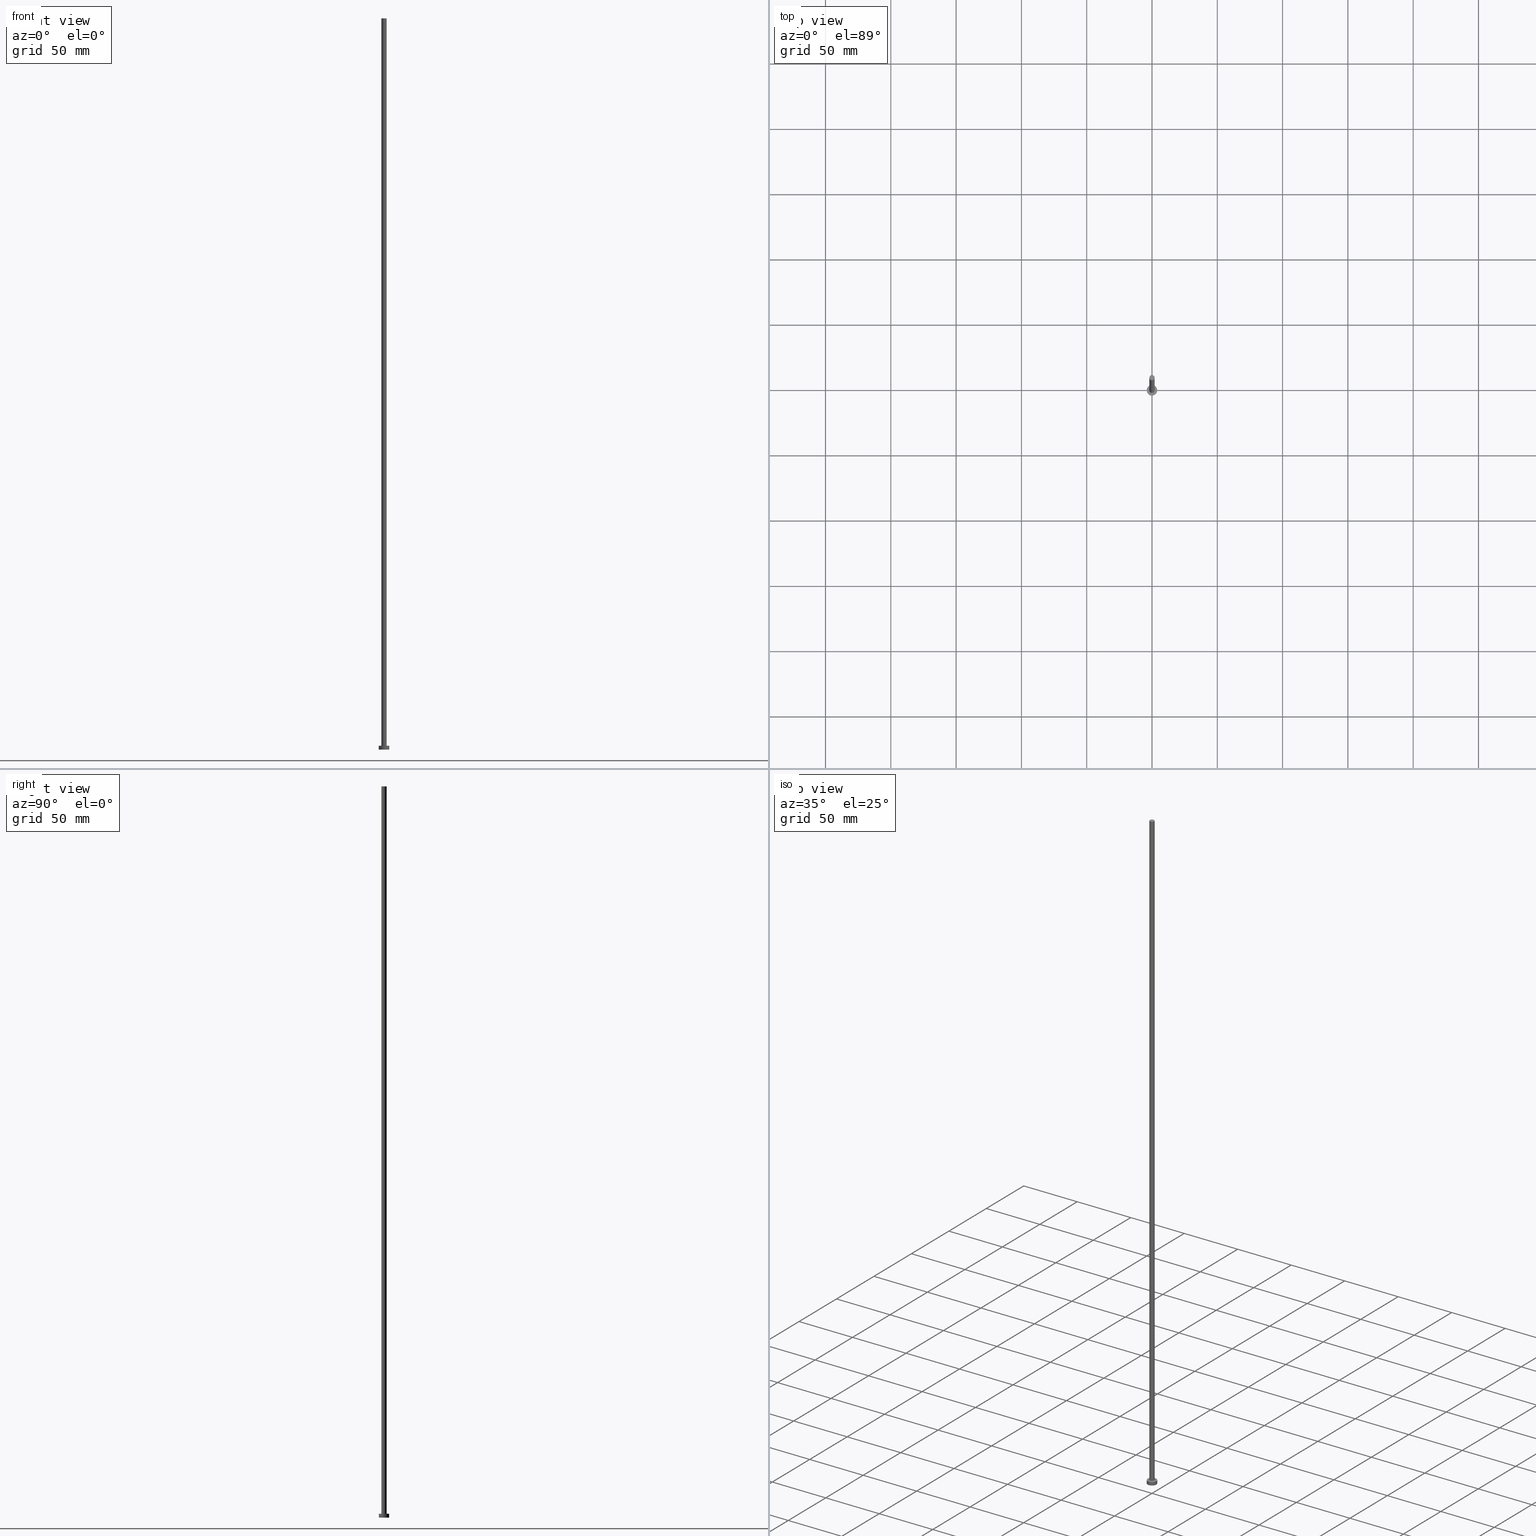
[diagram: canonical four-view strip — front | top / right | iso, engineering-drawing reading convention]
A machine part, canonical four-view strip (front | top / right | iso — engineering-drawing reading convention). The complete STEP part file that produces these views, byte-faithful:
ISO-10303-21;
HEADER;
FILE_DESCRIPTION (( 'STEP AP203' ),
    '1' );
FILE_NAME ('e1a6.STEP',
    '2023-05-05T07:33:14',
    ( '' ),
    ( '' ),
    'SwSTEP 2.0',
    'SolidWorks 2019',
    '' );
FILE_SCHEMA (( 'CONFIG_CONTROL_DESIGN' ));
ENDSEC;

DATA;
#1 = CLOSED_SHELL ( 'NONE', ( #240, #77, #68, #210, #229, #21, #202 ) ) ;
#2 = DIRECTION ( 'NONE',  ( 1.000000000000000000, 0.000000000000000000, 0.000000000000000000 ) ) ;
#3 = DIRECTION ( 'NONE',  ( 0.000000000000000000, 0.000000000000000000, 1.000000000000000000 ) ) ;
#4 = CARTESIAN_POINT ( 'NONE',  ( 0.000000000000000000, 0.000000000000000000, 560.0000000000000000 ) ) ;
#5 = CALENDAR_DATE ( 2023, 5, 5 ) ;
#6 = DATE_TIME_ROLE ( 'classification_date' ) ;
#7 = ORIENTED_EDGE ( 'NONE', *, *, #28, .F. ) ;
#8 = ORIENTED_EDGE ( 'NONE', *, *, #219, .F. ) ;
#9 = ORIENTED_EDGE ( 'NONE', *, *, #92, .T. ) ;
#10 = AXIS2_PLACEMENT_3D ( 'NONE', #125, #104, #74 ) ;
#11 = EDGE_CURVE ( 'NONE', #206, #204, #129, .T. ) ;
#12 = CIRCLE ( 'NONE', #161, 2.000000000000000000 ) ;
#13 = ORIENTED_EDGE ( 'NONE', *, *, #28, .T. ) ;
#14 = DIRECTION ( 'NONE',  ( 1.000000000000000000, 0.000000000000000000, 0.000000000000000000 ) ) ;
#15 = CARTESIAN_POINT ( 'NONE',  ( 0.000000000000000000, 0.000000000000000000, 3.000000000000000000 ) ) ;
#16 = CARTESIAN_POINT ( 'NONE',  ( 0.000000000000000000, 0.000000000000000000, 3.000000000000000000 ) ) ;
#17 = DIRECTION ( 'NONE',  ( -1.000000000000000000, 0.000000000000000000, 0.000000000000000000 ) ) ;
#18 = CARTESIAN_POINT ( 'NONE',  ( 0.000000000000000000, 0.000000000000000000, 0.000000000000000000 ) ) ;
#19 = AXIS2_PLACEMENT_3D ( 'NONE', #63, #186, #150 ) ;
#20 = DIRECTION ( 'NONE',  ( 1.000000000000000000, 0.000000000000000000, -0.000000000000000000 ) ) ;
#21 = ADVANCED_FACE ( 'NONE', ( #139 ), #31, .T. ) ;
#22 = DATE_AND_TIME ( #200, #84 ) ;
#23 = DIRECTION ( 'NONE',  ( -0.000000000000000000, -0.000000000000000000, -1.000000000000000000 ) ) ;
#24 = AXIS2_PLACEMENT_3D ( 'NONE', #80, #235, #122 ) ;
#25 = AXIS2_PLACEMENT_3D ( 'NONE', #194, #32, #54 ) ;
#26 = COORDINATED_UNIVERSAL_TIME_OFFSET ( 1, 0, .AHEAD. ) ;
#27 = PRODUCT_RELATED_PRODUCT_CATEGORY ( 'detail', '', ( #253 ) ) ;
#28 = EDGE_CURVE ( 'NONE', #118, #30, #111, .T. ) ;
#29 = AXIS2_PLACEMENT_3D ( 'NONE', #197, #102, #2 ) ;
#30 = VERTEX_POINT ( 'NONE', #56 ) ;
#31 = CYLINDRICAL_SURFACE ( 'NONE', #10, 2.000000000000000000 ) ;
#32 = DIRECTION ( 'NONE',  ( 0.000000000000000000, 0.000000000000000000, 1.000000000000000000 ) ) ;
#33 = FACE_BOUND ( 'NONE', #191, .T. ) ;
#34 = AXIS2_PLACEMENT_3D ( 'NONE', #237, #23, #148 ) ;
#35 = CARTESIAN_POINT ( 'NONE',  ( 4.000000000000000000, 4.898587196589412829E-16, 0.000000000000000000 ) ) ;
#36 = CC_DESIGN_PERSON_AND_ORGANIZATION_ASSIGNMENT ( #173, #203, ( #89 ) ) ;
#37 = CARTESIAN_POINT ( 'NONE',  ( 4.000000000000000000, 4.898587196589412829E-16, 3.000000000000000000 ) ) ;
#38 = COORDINATED_UNIVERSAL_TIME_OFFSET ( 1, 0, .AHEAD. ) ;
#39 = CC_DESIGN_PERSON_AND_ORGANIZATION_ASSIGNMENT ( #136, #44, ( #185 ) ) ;
#40 = LINE ( 'NONE', #184, #49 ) ;
#41 = DIRECTION ( 'NONE',  ( 1.000000000000000000, 0.000000000000000000, 0.000000000000000000 ) ) ;
#42 = PERSON_AND_ORGANIZATION_ROLE ( 'creator' ) ;
#43 = PERSON_AND_ORGANIZATION ( #86, #170 ) ;
#44 = PERSON_AND_ORGANIZATION_ROLE ( 'creator' ) ;
#45 = EDGE_LOOP ( 'NONE', ( #220, #175, #9, #193 ) ) ;
#46 = COORDINATED_UNIVERSAL_TIME_OFFSET ( 1, 0, .AHEAD. ) ;
#47 = LOCAL_TIME ( 9, 33, 14.00000000000000000, #132 ) ;
#48 = SECURITY_CLASSIFICATION_LEVEL ( 'unclassified' ) ;
#49 = VECTOR ( 'NONE', #66, 1000.000000000000000 ) ;
#50 = VERTEX_POINT ( 'NONE', #157 ) ;
#51 = ORIENTED_EDGE ( 'NONE', *, *, #121, .T. ) ;
#52 = APPROVAL_ROLE ( '' ) ;
#53 = ORIENTED_EDGE ( 'NONE', *, *, #11, .F. ) ;
#54 = DIRECTION ( 'NONE',  ( 1.000000000000000000, 0.000000000000000000, 0.000000000000000000 ) ) ;
#55 = VECTOR ( 'NONE', #214, 1000.000000000000000 ) ;
#56 = CARTESIAN_POINT ( 'NONE',  ( -2.000000000000000000, 0.000000000000000000, 3.000000000000000000 ) ) ;
#57 = DIRECTION ( 'NONE',  ( 1.000000000000000000, 0.000000000000000000, -0.000000000000000000 ) ) ;
#58 = DIRECTION ( 'NONE',  ( 1.000000000000000000, 0.000000000000000000, 0.000000000000000000 ) ) ;
#59 =( GEOMETRIC_REPRESENTATION_CONTEXT ( 3 ) GLOBAL_UNCERTAINTY_ASSIGNED_CONTEXT ( ( #227 ) ) GLOBAL_UNIT_ASSIGNED_CONTEXT ( ( #239, #127, #215 ) ) REPRESENTATION_CONTEXT ( 'NONE', 'WORKASPACE' ) );
#60 = CYLINDRICAL_SURFACE ( 'NONE', #156, 4.000000000000000000 ) ;
#61 = APPROVAL_ROLE ( '' ) ;
#62 = CIRCLE ( 'NONE', #98, 4.000000000000000000 ) ;
#63 = CARTESIAN_POINT ( 'NONE',  ( 0.000000000000000000, 0.000000000000000000, 0.000000000000000000 ) ) ;
#64 = CC_DESIGN_SECURITY_CLASSIFICATION ( #89, ( #185 ) ) ;
#65 = APPLICATION_PROTOCOL_DEFINITION ( 'international standard', 'config_control_design', 1994, #103 ) ;
#66 = DIRECTION ( 'NONE',  ( -0.000000000000000000, -0.000000000000000000, -1.000000000000000000 ) ) ;
#67 = EDGE_LOOP ( 'NONE', ( #96, #134, #114, #91 ) ) ;
#68 = ADVANCED_FACE ( 'NONE', ( #228 ), #255, .T. ) ;
#69 = ORIENTED_EDGE ( 'NONE', *, *, #100, .F. ) ;
#70 = APPROVAL_PERSON_ORGANIZATION ( #152, #115, #52 ) ;
#71 = DATE_AND_TIME ( #90, #116 ) ;
#72 = EDGE_LOOP ( 'NONE', ( #181, #53 ) ) ;
#73 = ORIENTED_EDGE ( 'NONE', *, *, #107, .T. ) ;
#74 = DIRECTION ( 'NONE',  ( -1.000000000000000000, 0.000000000000000000, 0.000000000000000000 ) ) ;
#75 = CARTESIAN_POINT ( 'NONE',  ( 0.000000000000000000, 0.000000000000000000, 560.0000000000000000 ) ) ;
#76 = CC_DESIGN_PERSON_AND_ORGANIZATION_ASSIGNMENT ( #190, #247, ( #185 ) ) ;
#77 = ADVANCED_FACE ( 'NONE', ( #231 ), #60, .T. ) ;
#78 = DIRECTION ( 'NONE',  ( 0.000000000000000000, 0.000000000000000000, 1.000000000000000000 ) ) ;
#79 = VECTOR ( 'NONE', #162, 1000.000000000000000 ) ;
#80 = CARTESIAN_POINT ( 'NONE',  ( 0.000000000000000000, 0.000000000000000000, 3.000000000000000000 ) ) ;
#81 = LOCAL_TIME ( 9, 33, 14.00000000000000000, #26 ) ;
#82 = PERSON_AND_ORGANIZATION_ROLE ( 'design_owner' ) ;
#83 = MECHANICAL_CONTEXT ( 'NONE', #103, 'mechanical' ) ;
#84 = LOCAL_TIME ( 9, 33, 14.00000000000000000, #217 ) ;
#85 = APPROVAL_ROLE ( '' ) ;
#86 = PERSON ( 'NEUR�EN�', 'NEUR�EN�', 'NEUR�EN�', ('NEUR�EN�'), ('NEUR�EN�'), ('NEUR�EN�') ) ;
#87 = CC_DESIGN_DATE_AND_TIME_ASSIGNMENT ( #109, #169, ( #146 ) ) ;
#88 = APPLICATION_PROTOCOL_DEFINITION ( 'international standard', 'config_control_design', 1994, #117 ) ;
#89 = SECURITY_CLASSIFICATION ( '', '', #48 ) ;
#90 = CALENDAR_DATE ( 2023, 5, 5 ) ;
#91 = ORIENTED_EDGE ( 'NONE', *, *, #92, .F. ) ;
#92 = EDGE_CURVE ( 'NONE', #50, #204, #138, .T. ) ;
#93 = DATE_AND_TIME ( #143, #252 ) ;
#94 = ORIENTED_EDGE ( 'NONE', *, *, #135, .F. ) ;
#95 = EDGE_LOOP ( 'NONE', ( #246, #187 ) ) ;
#96 = ORIENTED_EDGE ( 'NONE', *, *, #166, .F. ) ;
#97 = DIRECTION ( 'NONE',  ( 1.000000000000000000, 0.000000000000000000, 0.000000000000000000 ) ) ;
#98 = AXIS2_PLACEMENT_3D ( 'NONE', #119, #195, #14 ) ;
#99 = CARTESIAN_POINT ( 'NONE',  ( 0.000000000000000000, 0.000000000000000000, 3.000000000000000000 ) ) ;
#100 = EDGE_CURVE ( 'NONE', #113, #244, #149, .T. ) ;
#101 = DIRECTION ( 'NONE',  ( 0.000000000000000000, 0.000000000000000000, 1.000000000000000000 ) ) ;
#102 = DIRECTION ( 'NONE',  ( 0.000000000000000000, 0.000000000000000000, 1.000000000000000000 ) ) ;
#103 = APPLICATION_CONTEXT ( 'configuration controlled 3d designs of mechanical parts and assemblies' ) ;
#104 = DIRECTION ( 'NONE',  ( -0.000000000000000000, -0.000000000000000000, -1.000000000000000000 ) ) ;
#105 = AXIS2_PLACEMENT_3D ( 'NONE', #15, #78, #179 ) ;
#106 = CARTESIAN_POINT ( 'NONE',  ( 0.000000000000000000, 0.000000000000000000, 0.000000000000000000 ) ) ;
#107 = EDGE_CURVE ( 'NONE', #50, #248, #144, .T. ) ;
#108 = APPROVAL ( #236, 'NEUR�EN�' ) ;
#109 = DATE_AND_TIME ( #201, #47 ) ;
#110 = SHAPE_DEFINITION_REPRESENTATION ( #120, #223 ) ;
#111 = CIRCLE ( 'NONE', #160, 2.000000000000000000 ) ;
#112 = VECTOR ( 'NONE', #254, 1000.000000000000000 ) ;
#113 = VERTEX_POINT ( 'NONE', #142 ) ;
#114 = ORIENTED_EDGE ( 'NONE', *, *, #11, .T. ) ;
#115 = APPROVAL ( #171, 'NEUR�EN�' ) ;
#116 = LOCAL_TIME ( 9, 33, 14.00000000000000000, #46 ) ;
#117 = APPLICATION_CONTEXT ( 'configuration controlled 3d designs of mechanical parts and assemblies' ) ;
#118 = VERTEX_POINT ( 'NONE', #233 ) ;
#119 = CARTESIAN_POINT ( 'NONE',  ( 0.000000000000000000, 0.000000000000000000, 0.000000000000000000 ) ) ;
#120 = PRODUCT_DEFINITION_SHAPE ( 'NONE', 'NONE',  #146 ) ;
#121 = EDGE_CURVE ( 'NONE', #30, #118, #178, .T. ) ;
#122 = DIRECTION ( 'NONE',  ( 1.000000000000000000, 0.000000000000000000, 0.000000000000000000 ) ) ;
#123 = CC_DESIGN_PERSON_AND_ORGANIZATION_ASSIGNMENT ( #43, #82, ( #253 ) ) ;
#124 = FACE_OUTER_BOUND ( 'NONE', #188, .T. ) ;
#125 = CARTESIAN_POINT ( 'NONE',  ( 0.000000000000000000, 0.000000000000000000, 560.0000000000000000 ) ) ;
#126 = LINE ( 'NONE', #37, #112 ) ;
#127 =( NAMED_UNIT ( * ) PLANE_ANGLE_UNIT ( ) SI_UNIT ( $, .RADIAN. ) );
#128 = EDGE_CURVE ( 'NONE', #204, #206, #62, .T. ) ;
#129 = CIRCLE ( 'NONE', #232, 4.000000000000000000 ) ;
#130 = DIRECTION ( 'NONE',  ( 1.000000000000000000, 0.000000000000000000, 0.000000000000000000 ) ) ;
#131 = CC_DESIGN_APPROVAL ( #108, ( #185 ) ) ;
#132 = COORDINATED_UNIVERSAL_TIME_OFFSET ( 1, 0, .AHEAD. ) ;
#133 = APPROVAL_DATE_TIME ( #93, #108 ) ;
#134 = ORIENTED_EDGE ( 'NONE', *, *, #174, .T. ) ;
#135 = EDGE_CURVE ( 'NONE', #113, #118, #177, .T. ) ;
#136 = PERSON_AND_ORGANIZATION ( #86, #170 ) ;
#137 = ORIENTED_EDGE ( 'NONE', *, *, #241, .F. ) ;
#138 = LINE ( 'NONE', #180, #79 ) ;
#139 = FACE_OUTER_BOUND ( 'NONE', #172, .T. ) ;
#140 = CARTESIAN_POINT ( 'NONE',  ( -4.000000000000000000, 0.000000000000000000, 0.000000000000000000 ) ) ;
#141 = FACE_OUTER_BOUND ( 'NONE', #95, .T. ) ;
#142 = CARTESIAN_POINT ( 'NONE',  ( 2.000000000000000000, 2.449293598294706414E-16, 560.0000000000000000 ) ) ;
#143 = CALENDAR_DATE ( 2023, 5, 5 ) ;
#144 = CIRCLE ( 'NONE', #25, 4.000000000000000000 ) ;
#145 = DIRECTION ( 'NONE',  ( 0.000000000000000000, 0.000000000000000000, 1.000000000000000000 ) ) ;
#146 = PRODUCT_DEFINITION ( 'NEZN�M�', '', #185, #245 ) ;
#147 = APPROVAL_STATUS ( 'not_yet_approved' ) ;
#148 = DIRECTION ( 'NONE',  ( -1.000000000000000000, 0.000000000000000000, 0.000000000000000000 ) ) ;
#149 = CIRCLE ( 'NONE', #29, 2.000000000000000000 ) ;
#150 = DIRECTION ( 'NONE',  ( 1.000000000000000000, 0.000000000000000000, -0.000000000000000000 ) ) ;
#151 = AXIS2_PLACEMENT_3D ( 'NONE', #75, #158, #57 ) ;
#152 = PERSON_AND_ORGANIZATION ( #86, #170 ) ;
#153 = ORIENTED_EDGE ( 'NONE', *, *, #135, .T. ) ;
#154 = ORIENTED_EDGE ( 'NONE', *, *, #121, .F. ) ;
#155 = CARTESIAN_POINT ( 'NONE',  ( 0.000000000000000000, 0.000000000000000000, 3.000000000000000000 ) ) ;
#156 = AXIS2_PLACEMENT_3D ( 'NONE', #99, #225, #208 ) ;
#157 = CARTESIAN_POINT ( 'NONE',  ( -4.000000000000000000, 0.000000000000000000, 3.000000000000000000 ) ) ;
#158 = DIRECTION ( 'NONE',  ( 0.000000000000000000, 0.000000000000000000, 1.000000000000000000 ) ) ;
#159 = CARTESIAN_POINT ( 'NONE',  ( 0.000000000000000000, 0.000000000000000000, 3.000000000000000000 ) ) ;
#160 = AXIS2_PLACEMENT_3D ( 'NONE', #159, #249, #58 ) ;
#161 = AXIS2_PLACEMENT_3D ( 'NONE', #4, #145, #130 ) ;
#162 = DIRECTION ( 'NONE',  ( -0.000000000000000000, -0.000000000000000000, -1.000000000000000000 ) ) ;
#163 = CC_DESIGN_PERSON_AND_ORGANIZATION_ASSIGNMENT ( #218, #42, ( #146 ) ) ;
#164 = PERSON_AND_ORGANIZATION ( #86, #170 ) ;
#165 = FACE_OUTER_BOUND ( 'NONE', #224, .T. ) ;
#166 = EDGE_CURVE ( 'NONE', #248, #50, #238, .T. ) ;
#167 = FACE_OUTER_BOUND ( 'NONE', #72, .T. ) ;
#168 = APPROVAL_DATE_TIME ( #22, #230 ) ;
#169 = DATE_TIME_ROLE ( 'creation_date' ) ;
#170 = ORGANIZATION ( 'NEUR�EN�', 'NEUR�EN�', '' ) ;
#171 = APPROVAL_STATUS ( 'not_yet_approved' ) ;
#172 = EDGE_LOOP ( 'NONE', ( #94, #8, #222, #51 ) ) ;
#173 = PERSON_AND_ORGANIZATION ( #86, #170 ) ;
#174 = EDGE_CURVE ( 'NONE', #248, #206, #126, .T. ) ;
#175 = ORIENTED_EDGE ( 'NONE', *, *, #107, .F. ) ;
#176 = ORIENTED_EDGE ( 'NONE', *, *, #166, .T. ) ;
#177 = LINE ( 'NONE', #251, #55 ) ;
#178 = CIRCLE ( 'NONE', #24, 2.000000000000000000 ) ;
#179 = DIRECTION ( 'NONE',  ( 1.000000000000000000, 0.000000000000000000, 0.000000000000000000 ) ) ;
#180 = CARTESIAN_POINT ( 'NONE',  ( -4.000000000000000000, 0.000000000000000000, 3.000000000000000000 ) ) ;
#181 = ORIENTED_EDGE ( 'NONE', *, *, #128, .F. ) ;
#182 = PLANE ( 'NONE',  #19 ) ;
#183 = PERSON_AND_ORGANIZATION ( #86, #170 ) ;
#184 = CARTESIAN_POINT ( 'NONE',  ( -2.000000000000000000, 0.000000000000000000, 560.0000000000000000 ) ) ;
#185 = PRODUCT_DEFINITION_FORMATION_WITH_SPECIFIED_SOURCE ( 'LIBOVOLN�', '', #253, .NOT_KNOWN. ) ;
#186 = DIRECTION ( 'NONE',  ( 0.000000000000000000, 0.000000000000000000, 1.000000000000000000 ) ) ;
#187 = ORIENTED_EDGE ( 'NONE', *, *, #100, .T. ) ;
#188 = EDGE_LOOP ( 'NONE', ( #73, #176 ) ) ;
#189 = CC_DESIGN_DATE_AND_TIME_ASSIGNMENT ( #243, #6, ( #89 ) ) ;
#190 = PERSON_AND_ORGANIZATION ( #86, #170 ) ;
#191 = EDGE_LOOP ( 'NONE', ( #154, #7 ) ) ;
#192 = CC_DESIGN_APPROVAL ( #230, ( #146 ) ) ;
#193 = ORIENTED_EDGE ( 'NONE', *, *, #128, .T. ) ;
#194 = CARTESIAN_POINT ( 'NONE',  ( 0.000000000000000000, 0.000000000000000000, 3.000000000000000000 ) ) ;
#195 = DIRECTION ( 'NONE',  ( 0.000000000000000000, 0.000000000000000000, 1.000000000000000000 ) ) ;
#196 = PLANE ( 'NONE',  #242 ) ;
#197 = CARTESIAN_POINT ( 'NONE',  ( 0.000000000000000000, 0.000000000000000000, 560.0000000000000000 ) ) ;
#198 = CARTESIAN_POINT ( 'NONE',  ( 4.000000000000000000, 4.898587196589412829E-16, 3.000000000000000000 ) ) ;
#199 = CARTESIAN_POINT ( 'NONE',  ( -2.000000000000000000, 0.000000000000000000, 560.0000000000000000 ) ) ;
#200 = CALENDAR_DATE ( 2023, 5, 5 ) ;
#201 = CALENDAR_DATE ( 2023, 5, 5 ) ;
#202 = ADVANCED_FACE ( 'NONE', ( #141 ), #213, .T. ) ;
#203 = PERSON_AND_ORGANIZATION_ROLE ( 'classification_officer' ) ;
#204 = VERTEX_POINT ( 'NONE', #140 ) ;
#205 = APPROVAL_DATE_TIME ( #71, #115 ) ;
#206 = VERTEX_POINT ( 'NONE', #35 ) ;
#207 = DIRECTION ( 'NONE',  ( 0.000000000000000000, 0.000000000000000000, 1.000000000000000000 ) ) ;
#208 = DIRECTION ( 'NONE',  ( -1.000000000000000000, 0.000000000000000000, 0.000000000000000000 ) ) ;
#209 = DIRECTION ( 'NONE',  ( -0.000000000000000000, -0.000000000000000000, -1.000000000000000000 ) ) ;
#210 = ADVANCED_FACE ( 'NONE', ( #33, #124 ), #196, .T. ) ;
#211 = CC_DESIGN_APPROVAL ( #115, ( #89 ) ) ;
#212 = MANIFOLD_SOLID_BREP ( 'P�idat vysunut�m3', #1 ) ;
#213 = PLANE ( 'NONE',  #151 ) ;
#214 = DIRECTION ( 'NONE',  ( -0.000000000000000000, -0.000000000000000000, -1.000000000000000000 ) ) ;
#215 =( NAMED_UNIT ( * ) SI_UNIT ( $, .STERADIAN. ) SOLID_ANGLE_UNIT ( ) );
#216 = CYLINDRICAL_SURFACE ( 'NONE', #34, 2.000000000000000000 ) ;
#217 = COORDINATED_UNIVERSAL_TIME_OFFSET ( 1, 0, .AHEAD. ) ;
#218 = PERSON_AND_ORGANIZATION ( #86, #170 ) ;
#219 = EDGE_CURVE ( 'NONE', #244, #113, #12, .T. ) ;
#220 = ORIENTED_EDGE ( 'NONE', *, *, #174, .F. ) ;
#221 = APPROVAL_PERSON_ORGANIZATION ( #164, #108, #61 ) ;
#222 = ORIENTED_EDGE ( 'NONE', *, *, #241, .T. ) ;
#223 = ADVANCED_BREP_SHAPE_REPRESENTATION ( 'e1a6', ( #212, #234 ), #59 ) ;
#224 = EDGE_LOOP ( 'NONE', ( #69, #153, #13, #137 ) ) ;
#225 = DIRECTION ( 'NONE',  ( -0.000000000000000000, -0.000000000000000000, -1.000000000000000000 ) ) ;
#226 = APPROVAL_PERSON_ORGANIZATION ( #183, #230, #85 ) ;
#227 = UNCERTAINTY_MEASURE_WITH_UNIT (LENGTH_MEASURE( 1.000000000000000082E-05 ), #239, 'distance_accuracy_value', 'NONE');
#228 = FACE_OUTER_BOUND ( 'NONE', #45, .T. ) ;
#229 = ADVANCED_FACE ( 'NONE', ( #167 ), #182, .F. ) ;
#230 = APPROVAL ( #147, 'NEUR�EN�' ) ;
#231 = FACE_OUTER_BOUND ( 'NONE', #67, .T. ) ;
#232 = AXIS2_PLACEMENT_3D ( 'NONE', #18, #207, #97 ) ;
#233 = CARTESIAN_POINT ( 'NONE',  ( 2.000000000000000000, 2.449293598294706414E-16, 3.000000000000000000 ) ) ;
#234 = AXIS2_PLACEMENT_3D ( 'NONE', #106, #3, #41 ) ;
#235 = DIRECTION ( 'NONE',  ( 0.000000000000000000, 0.000000000000000000, 1.000000000000000000 ) ) ;
#236 = APPROVAL_STATUS ( 'not_yet_approved' ) ;
#237 = CARTESIAN_POINT ( 'NONE',  ( 0.000000000000000000, 0.000000000000000000, 560.0000000000000000 ) ) ;
#238 = CIRCLE ( 'NONE', #105, 4.000000000000000000 ) ;
#239 =( LENGTH_UNIT ( ) NAMED_UNIT ( * ) SI_UNIT ( .MILLI., .METRE. ) );
#240 = ADVANCED_FACE ( 'NONE', ( #165 ), #216, .T. ) ;
#241 = EDGE_CURVE ( 'NONE', #244, #30, #40, .T. ) ;
#242 = AXIS2_PLACEMENT_3D ( 'NONE', #16, #101, #20 ) ;
#243 = DATE_AND_TIME ( #5, #81 ) ;
#244 = VERTEX_POINT ( 'NONE', #199 ) ;
#245 = DESIGN_CONTEXT ( 'detailed design', #117, 'design' ) ;
#246 = ORIENTED_EDGE ( 'NONE', *, *, #219, .T. ) ;
#247 = PERSON_AND_ORGANIZATION_ROLE ( 'design_supplier' ) ;
#248 = VERTEX_POINT ( 'NONE', #198 ) ;
#249 = DIRECTION ( 'NONE',  ( 0.000000000000000000, 0.000000000000000000, 1.000000000000000000 ) ) ;
#250 = AXIS2_PLACEMENT_3D ( 'NONE', #155, #209, #17 ) ;
#251 = CARTESIAN_POINT ( 'NONE',  ( 2.000000000000000000, 2.449293598294706414E-16, 560.0000000000000000 ) ) ;
#252 = LOCAL_TIME ( 9, 33, 14.00000000000000000, #38 ) ;
#253 = PRODUCT ( 'e1a6', 'e1a6', '', ( #83 ) ) ;
#254 = DIRECTION ( 'NONE',  ( -0.000000000000000000, -0.000000000000000000, -1.000000000000000000 ) ) ;
#255 = CYLINDRICAL_SURFACE ( 'NONE', #250, 4.000000000000000000 ) ;
ENDSEC;
END-ISO-10303-21;
